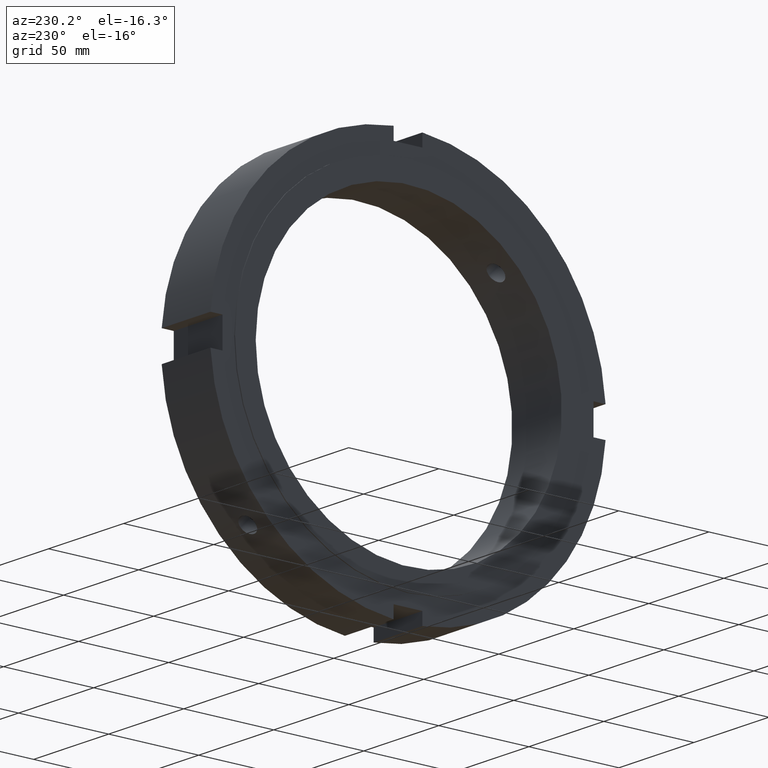
[diagram: clean part render]
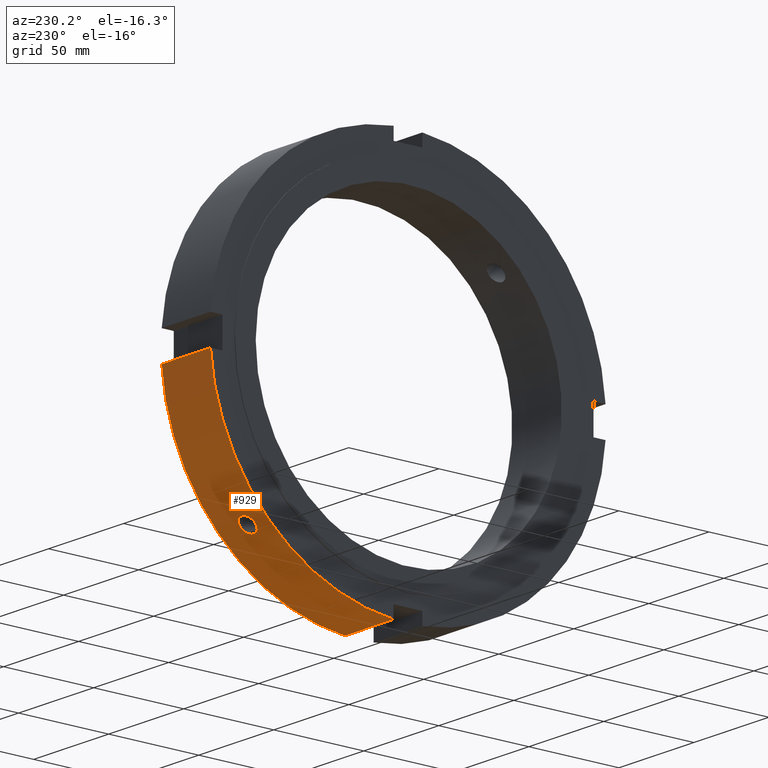
[diagram: same view with one face highlighted and labeled with its STEP entity id]
A machine part, auxiliary view. The second image highlights one B-rep face of the part: STEP entity #929.
In plain terms, the highlighted cylindrical surface (partial cylindrical patch) has radius 110 mm, axis along (1, 0, 0).
Its self-contained STEP definition (entity closure, byte-faithful):
#439=CARTESIAN_POINT('',(13.999999999999984,74.313544730652424,-81.101769830043295));
#440=VERTEX_POINT('',#439);
#441=CARTESIAN_POINT('',(13.999999999999982,74.313544730652424,-81.101769830043295));
#442=CARTESIAN_POINT('',(14.602780837341339,74.313544730652424,-81.101769830043295));
#443=CARTESIAN_POINT('',(15.245687622515806,74.402605663708073,-81.020444111866169));
#444=CARTESIAN_POINT('',(16.428285784468855,74.762980297239181,-80.688021853670918));
#445=CARTESIAN_POINT('',(16.967983642330822,75.034090003951235,-80.436727284065455));
#446=CARTESIAN_POINT('',(17.820241404868526,75.655330820004053,-79.852693613699699));
#447=CARTESIAN_POINT('',(18.18963704938119,76.046858303843322,-79.480973033163579));
#448=CARTESIAN_POINT('',(18.679518465115638,76.897048310761107,-78.658716575306158));
#449=CARTESIAN_POINT('',(18.799999999999983,77.355515565070746,-78.207976295969701));
#450=CARTESIAN_POINT('',(18.799999999999983,78.207976295969686,-77.35551556507076));
#451=CARTESIAN_POINT('',(18.679518465115645,78.658716575306158,-76.897048310761136));
#452=CARTESIAN_POINT('',(18.189637049381197,79.480973033163579,-76.046858303843337));
#453=CARTESIAN_POINT('',(17.820241404868522,79.852693613699671,-75.655330820004068));
#454=CARTESIAN_POINT('',(16.967983642330818,80.436727284065455,-75.034090003951249));
#455=CARTESIAN_POINT('',(16.428285784468855,80.68802185367089,-74.762980297239196));
#456=CARTESIAN_POINT('',(15.245687622515812,81.020444111866126,-74.402605663708087));
#457=CARTESIAN_POINT('',(14.60278083734134,81.101769830043295,-74.313544730652424));
#458=CARTESIAN_POINT('',(13.397219162658631,81.101769830043295,-74.313544730652424));
#459=CARTESIAN_POINT('',(12.754312377484174,81.020444111866141,-74.402605663708087));
#460=CARTESIAN_POINT('',(11.571714215531131,80.688021853670932,-74.762980297239196));
#461=CARTESIAN_POINT('',(11.03201635766915,80.436727284065469,-75.034090003951221));
#462=CARTESIAN_POINT('',(10.179758595131434,79.852693613699714,-75.655330820004039));
#463=CARTESIAN_POINT('',(9.810362950618792,79.480973033163579,-76.046858303843322));
#464=CARTESIAN_POINT('',(9.32048153488433,78.658716575306158,-76.897048310761122));
#465=CARTESIAN_POINT('',(9.199999999999983,78.207976295969686,-77.35551556507076));
#466=CARTESIAN_POINT('',(9.199999999999983,77.355515565070746,-78.207976295969701));
#467=CARTESIAN_POINT('',(9.32048153488433,76.897048310761093,-78.658716575306173));
#468=CARTESIAN_POINT('',(9.810362950618782,76.046858303843308,-79.480973033163593));
#469=CARTESIAN_POINT('',(10.179758595131441,75.655330820004053,-79.852693613699699));
#470=CARTESIAN_POINT('',(11.032016357669143,75.034090003951235,-80.436727284065455));
#471=CARTESIAN_POINT('',(11.571714215531099,74.762980297239181,-80.688021853670918));
#472=CARTESIAN_POINT('',(12.754312377484148,74.402605663708073,-81.020444111866169));
#473=CARTESIAN_POINT('',(13.397219162658626,74.313544730652424,-81.101769830043295));
#474=CARTESIAN_POINT('',(13.999999999999984,74.313544730652424,-81.101769830043295));
#475=B_SPLINE_CURVE_WITH_KNOTS('',3,(#441,#442,#443,#444,#445,#446,#447,#448,#449,#450,#451,#452,#453,#454,#455,#456,#457,#458,#459,#460,#461,#462,#463,#464,#465,#466,#467,#468,#469,#470,#471,#472,#473,#474),.UNSPECIFIED.,.T.,.U.,(4,2,2,2,2,2,2,2,2,2,2,2,2,2,2,2,4),(0.0,0.180834251202407,0.361668502404814,0.542502731458978,0.723336960513143,0.904171189567308,1.085005418621472,1.265839669823879,1.446673921026286,1.627508172228692,1.808342423431098,1.989176652485265,2.170010881539432,2.350845110593597,2.531679339647762,2.712513590850168,2.893347842052576),.UNSPECIFIED.);
#476=EDGE_CURVE('',#440,#440,#475,.T.);
#573=CARTESIAN_POINT('',(0.499999999999967,7.999999999999973,-109.70870521521982));
#574=VERTEX_POINT('',#573);
#583=CARTESIAN_POINT('',(32.999999999999979,7.999999999999973,-109.70870521521982));
#584=VERTEX_POINT('',#583);
#585=CARTESIAN_POINT('',(32.999999999999979,7.999999999999973,-109.70870521521982));
#586=DIRECTION('',(-1.0,0.0,0.0));
#587=VECTOR('',#586,32.500000000000014);
#588=LINE('',#585,#587);
#589=EDGE_CURVE('',#584,#574,#588,.T.);
#894=CARTESIAN_POINT('',(16.749999999999975,0.0,0.0));
#895=DIRECTION('',(1.0,0.0,0.0));
#896=DIRECTION('',(0.0,1.0,0.0));
#897=AXIS2_PLACEMENT_3D('',#894,#895,#896);
#898=CYLINDRICAL_SURFACE('',#897,110.0);
#899=ORIENTED_EDGE('',*,*,#589,.T.);
#900=CARTESIAN_POINT('',(0.499999999999967,109.70870521521982,-7.999999999999993));
#901=VERTEX_POINT('',#900);
#902=CARTESIAN_POINT('',(0.499999999999967,0.0,0.0));
#903=DIRECTION('',(1.0,0.0,0.0));
#904=DIRECTION('',(0.0,1.0,0.0));
#905=AXIS2_PLACEMENT_3D('',#902,#903,#904);
#906=CIRCLE('',#905,110.0);
#907=EDGE_CURVE('',#574,#901,#906,.T.);
#908=ORIENTED_EDGE('',*,*,#907,.T.);
#909=CARTESIAN_POINT('',(32.999999999999979,109.70870521521982,-7.999999999999994));
#910=VERTEX_POINT('',#909);
#911=CARTESIAN_POINT('',(0.499999999999968,109.70870521521982,-7.999999999999993));
#912=DIRECTION('',(1.0,0.0,0.0));
#913=VECTOR('',#912,32.500000000000014);
#914=LINE('',#911,#913);
#915=EDGE_CURVE('',#901,#910,#914,.T.);
#916=ORIENTED_EDGE('',*,*,#915,.T.);
#917=CARTESIAN_POINT('',(32.999999999999979,0.0,0.0));
#918=DIRECTION('',(1.0,0.0,0.0));
#919=DIRECTION('',(0.0,1.0,0.0));
#920=AXIS2_PLACEMENT_3D('',#917,#918,#919);
#921=CIRCLE('',#920,110.0);
#922=EDGE_CURVE('',#584,#910,#921,.T.);
#923=ORIENTED_EDGE('',*,*,#922,.F.);
#924=EDGE_LOOP('',(#899,#908,#916,#923));
#925=FACE_OUTER_BOUND('',#924,.T.);
#926=ORIENTED_EDGE('',*,*,#476,.T.);
#927=EDGE_LOOP('',(#926));
#928=FACE_BOUND('',#927,.T.);
#929=ADVANCED_FACE('',(#925,#928),#898,.T.);